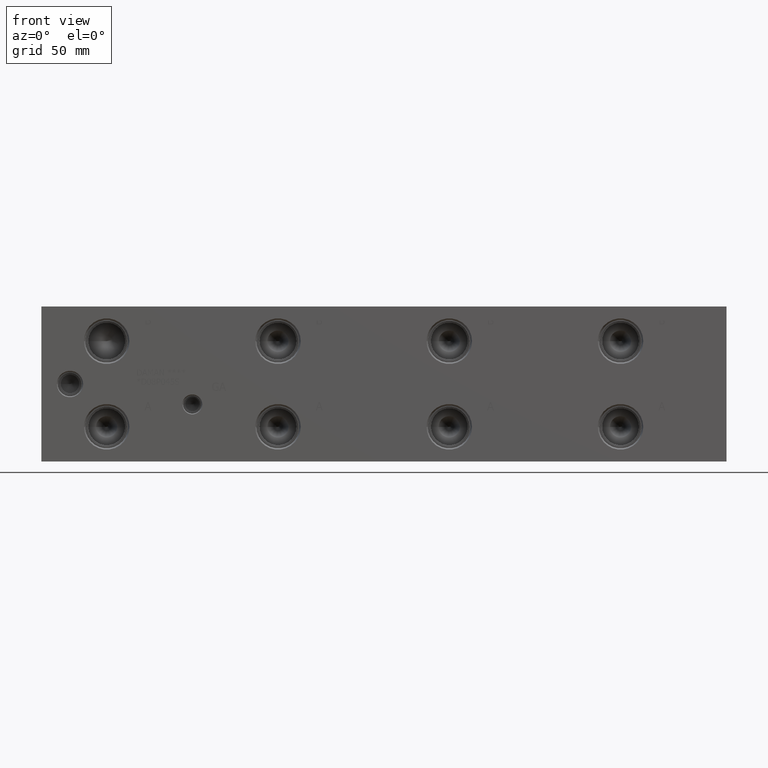
[diagram: clean part render]
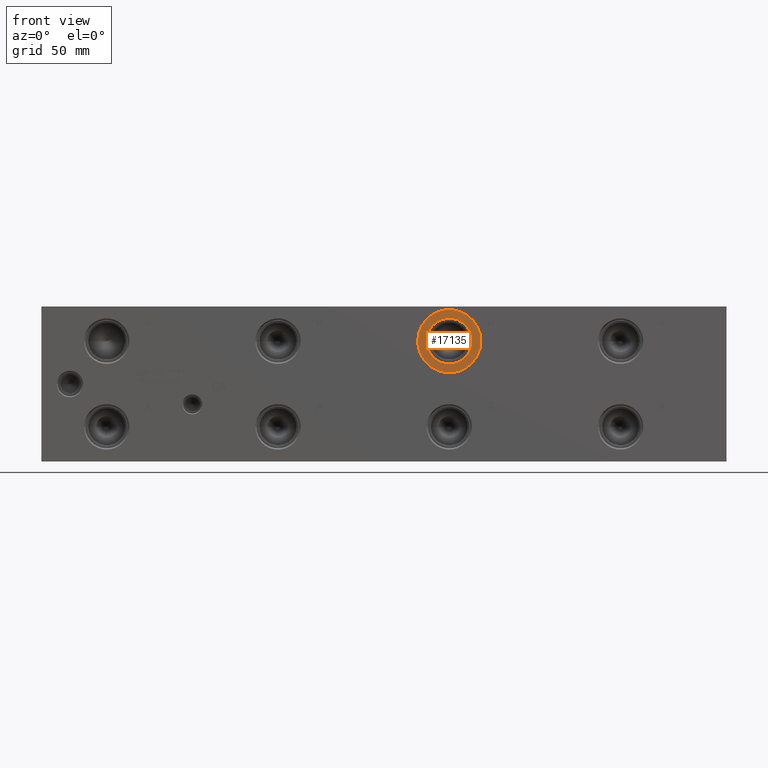
[diagram: same view with one face highlighted and labeled with its STEP entity id]
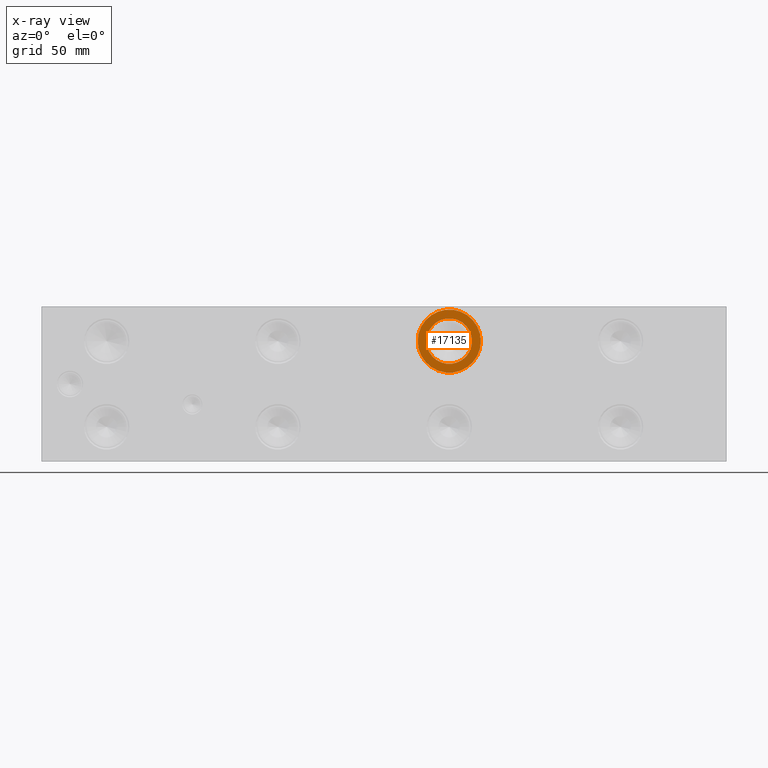
[diagram: x-ray of the same camera — body ghosted, the highlighted face saturated]
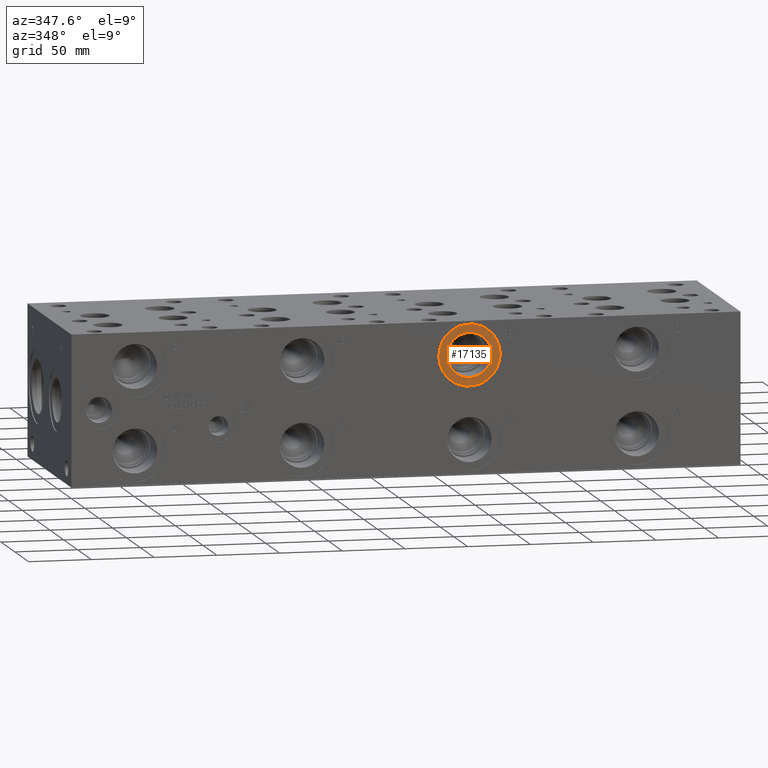
[diagram: same view with one face highlighted and labeled with its STEP entity id]
A machine part, front view. The second image highlights one B-rep face of the part: STEP entity #17135.
The next image is the same camera in x-ray: the body ghosted, the highlighted face saturated — about 0% of this face is hidden behind the body in this view.
A second angle (auxiliary view) of the same face is appended — the face is thin or edge-on in the first view.
In plain terms, the highlighted planar face has unit normal (0, -1, 0).
Its self-contained STEP definition (entity closure, byte-faithful):
#683=CIRCLE('',#18082,24.5618);
#684=CIRCLE('',#18083,24.5618);
#685=CIRCLE('',#18084,17.7546);
#1528=FACE_BOUND('',#3298,.T.);
#2292=FACE_OUTER_BOUND('',#3297,.T.);
#3297=EDGE_LOOP('',(#14211,#14212));
#3298=EDGE_LOOP('',(#14213));
#7786=VERTEX_POINT('',#28915);
#7787=VERTEX_POINT('',#28916);
#7788=VERTEX_POINT('',#28919);
#10061=EDGE_CURVE('',#7786,#7787,#683,.T.);
#10062=EDGE_CURVE('',#7787,#7786,#684,.T.);
#10063=EDGE_CURVE('',#7788,#7788,#685,.T.);
#14211=ORIENTED_EDGE('',*,*,#10061,.T.);
#14212=ORIENTED_EDGE('',*,*,#10062,.T.);
#14213=ORIENTED_EDGE('',*,*,#10063,.F.);
#15876=PLANE('',#18081);
#17135=ADVANCED_FACE('',(#2292,#1528),#15876,.T.);
#18081=AXIS2_PLACEMENT_3D('',#28914,#21349,#21350);
#18082=AXIS2_PLACEMENT_3D('',#28917,#21351,#21352);
#18083=AXIS2_PLACEMENT_3D('',#28918,#21353,#21354);
#18084=AXIS2_PLACEMENT_3D('',#28920,#21355,#21356);
#21349=DIRECTION('center_axis',(0.,-1.,0.));
#21350=DIRECTION('ref_axis',(1.,0.,0.));
#21351=DIRECTION('center_axis',(0.,-1.,0.));
#21352=DIRECTION('ref_axis',(1.,0.,0.));
#21353=DIRECTION('center_axis',(0.,-1.,0.));
#21354=DIRECTION('ref_axis',(1.,0.,0.));
#21355=DIRECTION('center_axis',(0.,-1.,0.));
#21356=DIRECTION('ref_axis',(1.,0.,0.));
#28914=CARTESIAN_POINT('Origin',(317.5,0.7874,93.6752));
#28915=CARTESIAN_POINT('',(342.0618,0.7874,93.6752));
#28916=CARTESIAN_POINT('',(292.9382,0.7874,93.6752));
#28917=CARTESIAN_POINT('Origin',(317.5,0.7874,93.6752));
#28918=CARTESIAN_POINT('Origin',(317.5,0.7874,93.6752));
#28919=CARTESIAN_POINT('',(299.7454,0.7874,93.6752));
#28920=CARTESIAN_POINT('Origin',(317.5,0.7874,93.6752));